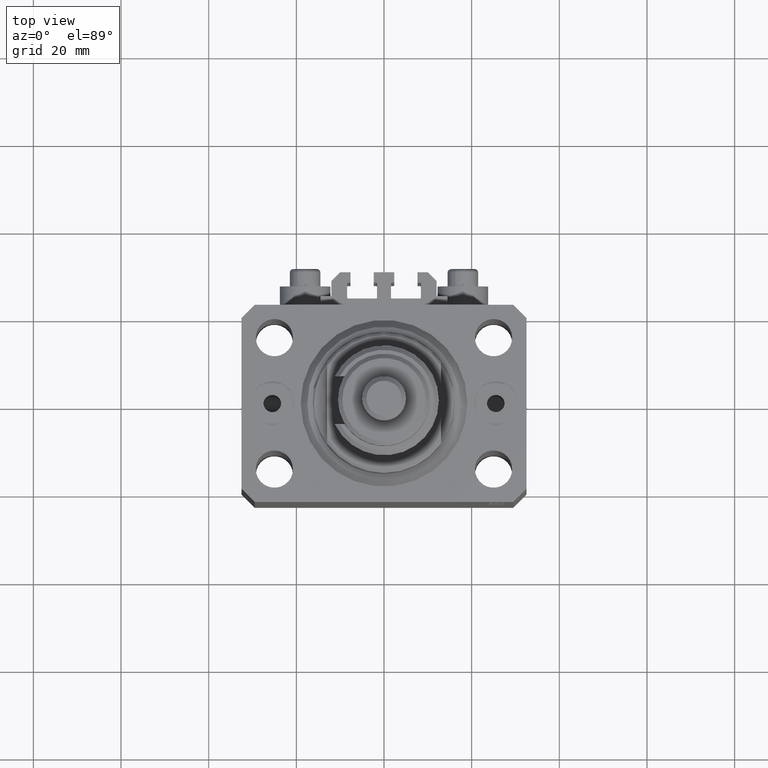
[diagram: clean part render]
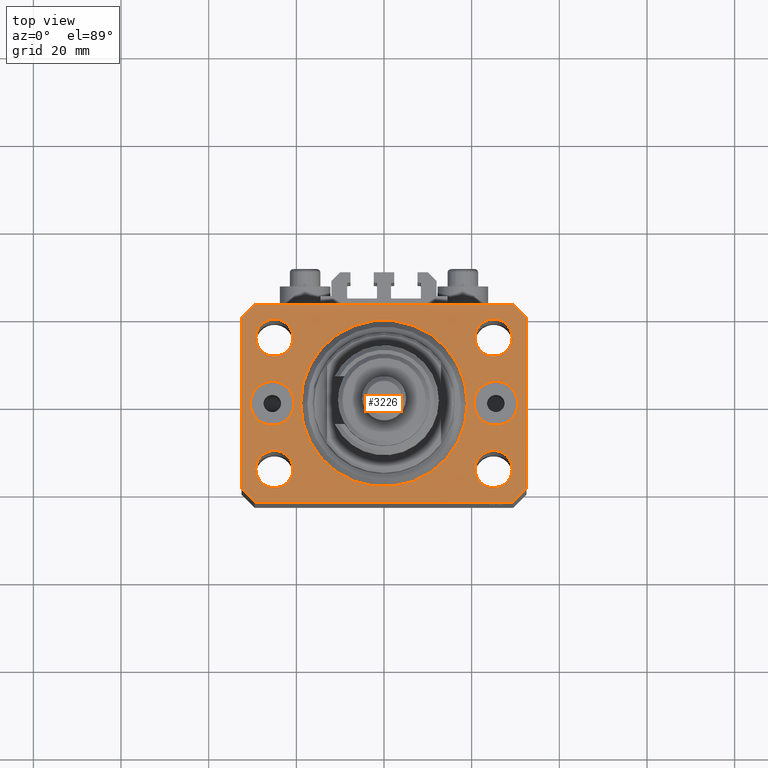
[diagram: same view with one face highlighted and labeled with its STEP entity id]
A machine part, top view. The second image highlights one B-rep face of the part: STEP entity #3226.
In plain terms, the highlighted planar face has unit normal (0, 0, 1).
Its self-contained STEP definition (entity closure, byte-faithful):
#81 = FACE_BOUND ( 'NONE', #24141, .T. ) ;
#518 = VECTOR ( 'NONE', #23508, 1000.000000000000000 ) ;
#1010 = VERTEX_POINT ( 'NONE', #22788 ) ;
#1161 = VECTOR ( 'NONE', #42852, 1000.000000000000000 ) ;
#1249 = EDGE_CURVE ( 'NONE', #11706, #33250, #41707, .T. ) ;
#1444 = DIRECTION ( 'NONE',  ( 0.000000000000000000, 0.000000000000000000, 1.000000000000000000 ) ) ;
#1555 = CARTESIAN_POINT ( 'NONE',  ( -25.50000000000000000, 0.000000000000000000, 0.000000000000000000 ) ) ;
#1666 = CARTESIAN_POINT ( 'NONE',  ( -20.74999999997862687, 14.99999999999999645, 0.000000000000000000 ) ) ;
#1779 = EDGE_LOOP ( 'NONE', ( #48025, #48828 ) ) ;
#2210 = CARTESIAN_POINT ( 'NONE',  ( 29.24999999997631051, -15.00000000000000355, 0.000000000000000000 ) ) ;
#2597 = DIRECTION ( 'NONE',  ( 0.000000000000000000, -0.000000000000000000, -1.000000000000000000 ) ) ;
#2757 = CARTESIAN_POINT ( 'NONE',  ( 29.24999999995729283, 14.99999999999999289, 0.000000000000000000 ) ) ;
#2859 = CARTESIAN_POINT ( 'NONE',  ( 32.49999999999651124, -19.49999999999949196, 0.000000000000000000 ) ) ;
#3114 = EDGE_CURVE ( 'NONE', #17656, #48320, #45877, .T. ) ;
#3121 = FACE_BOUND ( 'NONE', #49092, .T. ) ;
#3226 = ADVANCED_FACE ( 'NONE', ( #30473, #30228, #81, #11220, #3121, #7422, #38299, #34520 ), #45628, .T. ) ;
#3275 = CIRCLE ( 'NONE', #12998, 19.00000000000000000 ) ;
#3492 = VECTOR ( 'NONE', #22475, 1000.000000000000000 ) ;
#3586 = EDGE_CURVE ( 'NONE', #36620, #36896, #49602, .T. ) ;
#3898 = CARTESIAN_POINT ( 'NONE',  ( 30.50000000000333955, 0.000000000000000000, 0.000000000000000000 ) ) ;
#4098 = EDGE_CURVE ( 'NONE', #39252, #11706, #46631, .T. ) ;
#4143 = CARTESIAN_POINT ( 'NONE',  ( 32.49999999999702993, 19.49999999999945999, 0.000000000000000000 ) ) ;
#4576 = DIRECTION ( 'NONE',  ( 1.000000000000000000, 0.000000000000000000, 0.000000000000000000 ) ) ;
#5065 = CARTESIAN_POINT ( 'NONE',  ( 20.49999999999665690, 6.123233995740857512E-16, 0.000000000000000000 ) ) ;
#5295 = LINE ( 'NONE', #28100, #17809 ) ;
#5341 = VERTEX_POINT ( 'NONE', #47745 ) ;
#5984 = DIRECTION ( 'NONE',  ( 0.000000000000000000, 0.000000000000000000, 1.000000000000000000 ) ) ;
#6090 = DIRECTION ( 'NONE',  ( 1.000000000000000000, 0.000000000000000000, 0.000000000000000000 ) ) ;
#6146 = CARTESIAN_POINT ( 'NONE',  ( 25.00000000000000000, 14.99999999999999289, 0.000000000000000000 ) ) ;
#6256 = AXIS2_PLACEMENT_3D ( 'NONE', #40573, #9676, #40078 ) ;
#6265 = VERTEX_POINT ( 'NONE', #28258 ) ;
#6294 = VERTEX_POINT ( 'NONE', #1666 ) ;
#6660 = VERTEX_POINT ( 'NONE', #39954 ) ;
#6781 = AXIS2_PLACEMENT_3D ( 'NONE', #34769, #15517, #18316 ) ;
#7028 = CARTESIAN_POINT ( 'NONE',  ( 32.49999999999702993, 19.49999999999945999, 0.000000000000000000 ) ) ;
#7109 = CARTESIAN_POINT ( 'NONE',  ( 20.75000000004271072, 14.99999999999999289, 0.000000000000000000 ) ) ;
#7422 = FACE_BOUND ( 'NONE', #26419, .T. ) ;
#7693 = DIRECTION ( 'NONE',  ( 0.000000000000000000, 0.000000000000000000, 1.000000000000000000 ) ) ;
#7821 = LINE ( 'NONE', #23025, #25558 ) ;
#8082 = CIRCLE ( 'NONE', #25081, 4.249999999976314058 ) ;
#9160 = EDGE_CURVE ( 'NONE', #6660, #6294, #34453, .T. ) ;
#9676 = DIRECTION ( 'NONE',  ( 0.000000000000000000, 0.000000000000000000, 1.000000000000000000 ) ) ;
#9712 = EDGE_CURVE ( 'NONE', #17178, #39252, #7821, .T. ) ;
#9877 = EDGE_CURVE ( 'NONE', #20424, #17178, #41973, .T. ) ;
#11124 = AXIS2_PLACEMENT_3D ( 'NONE', #18271, #33727, #32737 ) ;
#11220 = FACE_BOUND ( 'NONE', #42751, .T. ) ;
#11605 = CARTESIAN_POINT ( 'NONE',  ( -29.49999999999650413, -22.49999999999949907, 0.000000000000000000 ) ) ;
#11706 = VERTEX_POINT ( 'NONE', #4143 ) ;
#11983 = DIRECTION ( 'NONE',  ( -1.000000000000000000, -3.528251137580330676E-16, 0.000000000000000000 ) ) ;
#12094 = DIRECTION ( 'NONE',  ( 1.000000000000000000, 0.000000000000000000, 0.000000000000000000 ) ) ;
#12631 = EDGE_CURVE ( 'NONE', #16740, #22906, #31349, .T. ) ;
#12843 = ORIENTED_EDGE ( 'NONE', *, *, #41483, .F. ) ;
#12986 = CARTESIAN_POINT ( 'NONE',  ( -32.49999999999650413, 19.49999999999949907, 0.000000000000000000 ) ) ;
#12998 = AXIS2_PLACEMENT_3D ( 'NONE', #28600, #16441, #36671 ) ;
#13077 = CARTESIAN_POINT ( 'NONE',  ( -24.99999999999999289, -15.00000000000000355, 0.000000000000000000 ) ) ;
#13165 = CARTESIAN_POINT ( 'NONE',  ( 19.00000000000000000, 0.000000000000000000, 0.000000000000000000 ) ) ;
#13241 = ORIENTED_EDGE ( 'NONE', *, *, #18842, .F. ) ;
#13374 = ORIENTED_EDGE ( 'NONE', *, *, #1249, .T. ) ;
#13676 = CARTESIAN_POINT ( 'NONE',  ( 24.99999999999999289, -15.00000000000000355, 0.000000000000000000 ) ) ;
#13825 = CARTESIAN_POINT ( 'NONE',  ( -25.00000000000000000, 14.99999999999999645, 0.000000000000000000 ) ) ;
#15136 = CARTESIAN_POINT ( 'NONE',  ( 0.000000000000000000, 0.000000000000000000, 0.000000000000000000 ) ) ;
#15175 = ORIENTED_EDGE ( 'NONE', *, *, #9877, .T. ) ;
#15277 = CARTESIAN_POINT ( 'NONE',  ( 20.75000000002367884, -15.00000000000000355, 0.000000000000000000 ) ) ;
#15517 = DIRECTION ( 'NONE',  ( 0.000000000000000000, 0.000000000000000000, 1.000000000000000000 ) ) ;
#16441 = DIRECTION ( 'NONE',  ( 0.000000000000000000, 0.000000000000000000, 1.000000000000000000 ) ) ;
#16735 = CARTESIAN_POINT ( 'NONE',  ( 29.49999999999650413, -22.49999999999949196, 0.000000000000000000 ) ) ;
#16740 = VERTEX_POINT ( 'NONE', #3898 ) ;
#17178 = VERTEX_POINT ( 'NONE', #16735 ) ;
#17656 = VERTEX_POINT ( 'NONE', #22907 ) ;
#17777 = LINE ( 'NONE', #12986, #25220 ) ;
#17809 = VECTOR ( 'NONE', #29093, 1000.000000000000114 ) ;
#18034 = DIRECTION ( 'NONE',  ( 1.000000000000000000, 0.000000000000000000, 0.000000000000000000 ) ) ;
#18165 = ORIENTED_EDGE ( 'NONE', *, *, #18629, .T. ) ;
#18271 = CARTESIAN_POINT ( 'NONE',  ( -24.99999999999999289, -15.00000000000000355, 0.000000000000000000 ) ) ;
#18316 = DIRECTION ( 'NONE',  ( 1.000000000000000000, 0.000000000000000000, -0.000000000000000000 ) ) ;
#18629 = EDGE_CURVE ( 'NONE', #22524, #20424, #5295, .T. ) ;
#18673 = ORIENTED_EDGE ( 'NONE', *, *, #4098, .T. ) ;
#18717 = AXIS2_PLACEMENT_3D ( 'NONE', #13825, #5984, #44688 ) ;
#18751 = AXIS2_PLACEMENT_3D ( 'NONE', #39578, #7693, #35540 ) ;
#18842 = EDGE_CURVE ( 'NONE', #6265, #1010, #46874, .T. ) ;
#19154 = CIRCLE ( 'NONE', #32936, 4.249999999957291053 ) ;
#19985 = VECTOR ( 'NONE', #11983, 1000.000000000000000 ) ;
#20029 = ORIENTED_EDGE ( 'NONE', *, *, #43552, .F. ) ;
#20267 = CIRCLE ( 'NONE', #18751, 5.000000000003342215 ) ;
#20424 = VERTEX_POINT ( 'NONE', #33467 ) ;
#20591 = DIRECTION ( 'NONE',  ( 0.000000000000000000, -1.000000000000000000, 0.000000000000000000 ) ) ;
#20781 = CIRCLE ( 'NONE', #23209, 19.00000000000000000 ) ;
#20999 = AXIS2_PLACEMENT_3D ( 'NONE', #6146, #47651, #40329 ) ;
#21145 = AXIS2_PLACEMENT_3D ( 'NONE', #34637, #27041, #12094 ) ;
#22129 = EDGE_CURVE ( 'NONE', #22906, #16740, #42957, .T. ) ;
#22292 = EDGE_CURVE ( 'NONE', #6294, #6660, #40542, .T. ) ;
#22475 = DIRECTION ( 'NONE',  ( -0.7071067811865344721, 0.7071067811865606734, 0.000000000000000000 ) ) ;
#22524 = VERTEX_POINT ( 'NONE', #39117 ) ;
#22788 = CARTESIAN_POINT ( 'NONE',  ( -29.25000000004036593, -15.00000000000000355, 0.000000000000000000 ) ) ;
#22865 = ORIENTED_EDGE ( 'NONE', *, *, #3586, .F. ) ;
#22906 = VERTEX_POINT ( 'NONE', #5065 ) ;
#22907 = CARTESIAN_POINT ( 'NONE',  ( -29.49999999999650413, 22.49999999999949907, 0.000000000000000000 ) ) ;
#23025 = CARTESIAN_POINT ( 'NONE',  ( 29.49999999999650413, -22.49999999999949196, 0.000000000000000000 ) ) ;
#23209 = AXIS2_PLACEMENT_3D ( 'NONE', #15136, #23760, #42468 ) ;
#23278 = DIRECTION ( 'NONE',  ( 0.7071067811865483499, 0.7071067811865466846, 0.000000000000000000 ) ) ;
#23508 = DIRECTION ( 'NONE',  ( 1.000000000000000000, 1.176083712526788232E-16, 0.000000000000000000 ) ) ;
#23760 = DIRECTION ( 'NONE',  ( 0.000000000000000000, 0.000000000000000000, 1.000000000000000000 ) ) ;
#23993 = DIRECTION ( 'NONE',  ( 1.000000000000000000, 0.000000000000000000, 0.000000000000000000 ) ) ;
#24046 = VERTEX_POINT ( 'NONE', #7109 ) ;
#24060 = CARTESIAN_POINT ( 'NONE',  ( -30.50000000000333955, 6.123233995740857512E-16, 0.000000000000000000 ) ) ;
#24141 = EDGE_LOOP ( 'NONE', ( #24318, #41154 ) ) ;
#24227 = CIRCLE ( 'NONE', #44380, 5.000000000003342215 ) ;
#24318 = ORIENTED_EDGE ( 'NONE', *, *, #35518, .F. ) ;
#24564 = CARTESIAN_POINT ( 'NONE',  ( 25.00000000000000000, 14.99999999999999289, 0.000000000000000000 ) ) ;
#25081 = AXIS2_PLACEMENT_3D ( 'NONE', #13676, #32944, #48331 ) ;
#25220 = VECTOR ( 'NONE', #20591, 1000.000000000000000 ) ;
#25558 = VECTOR ( 'NONE', #23278, 1000.000000000000000 ) ;
#26171 = CARTESIAN_POINT ( 'NONE',  ( -29.49999999999650413, 22.49999999999949907, 0.000000000000000000 ) ) ;
#26419 = EDGE_LOOP ( 'NONE', ( #47441, #38617 ) ) ;
#26696 = EDGE_LOOP ( 'NONE', ( #12843, #34664 ) ) ;
#27041 = DIRECTION ( 'NONE',  ( 0.000000000000000000, -0.000000000000000000, -1.000000000000000000 ) ) ;
#28038 = ORIENTED_EDGE ( 'NONE', *, *, #37146, .F. ) ;
#28094 = CIRCLE ( 'NONE', #11124, 4.250000000040370374 ) ;
#28100 = CARTESIAN_POINT ( 'NONE',  ( -32.49999999999650413, -19.49999999999949907, 0.000000000000000000 ) ) ;
#28258 = CARTESIAN_POINT ( 'NONE',  ( -20.74999999995962341, -15.00000000000000355, 0.000000000000000000 ) ) ;
#28600 = CARTESIAN_POINT ( 'NONE',  ( 0.000000000000000000, 0.000000000000000000, 0.000000000000000000 ) ) ;
#29093 = DIRECTION ( 'NONE',  ( 0.7071067811865474617, -0.7071067811865474617, 0.000000000000000000 ) ) ;
#29187 = EDGE_LOOP ( 'NONE', ( #49728, #45741 ) ) ;
#29512 = ORIENTED_EDGE ( 'NONE', *, *, #3114, .T. ) ;
#30228 = FACE_BOUND ( 'NONE', #1779, .T. ) ;
#30473 = FACE_OUTER_BOUND ( 'NONE', #35935, .T. ) ;
#31349 = CIRCLE ( 'NONE', #37791, 5.000000000003342215 ) ;
#31926 = DIRECTION ( 'NONE',  ( 1.000000000000000000, 0.000000000000000000, 0.000000000000000000 ) ) ;
#31934 = CARTESIAN_POINT ( 'NONE',  ( 24.99999999999999289, -15.00000000000000355, 0.000000000000000000 ) ) ;
#32075 = VERTEX_POINT ( 'NONE', #24060 ) ;
#32231 = CARTESIAN_POINT ( 'NONE',  ( 32.49999999999651124, -19.49999999999949196, 0.000000000000000000 ) ) ;
#32404 = CARTESIAN_POINT ( 'NONE',  ( 29.49999999999707967, 22.49999999999952038, 0.000000000000000000 ) ) ;
#32408 = DIRECTION ( 'NONE',  ( 0.000000000000000000, 0.000000000000000000, 1.000000000000000000 ) ) ;
#32614 = ORIENTED_EDGE ( 'NONE', *, *, #9712, .T. ) ;
#32641 = VECTOR ( 'NONE', #41847, 1000.000000000000114 ) ;
#32737 = DIRECTION ( 'NONE',  ( 1.000000000000000000, 0.000000000000000000, 0.000000000000000000 ) ) ;
#32936 = AXIS2_PLACEMENT_3D ( 'NONE', #24564, #32408, #31926 ) ;
#32944 = DIRECTION ( 'NONE',  ( 0.000000000000000000, 0.000000000000000000, 1.000000000000000000 ) ) ;
#33250 = VERTEX_POINT ( 'NONE', #32404 ) ;
#33467 = CARTESIAN_POINT ( 'NONE',  ( -29.49999999999650413, -22.49999999999949907, 0.000000000000000000 ) ) ;
#33727 = DIRECTION ( 'NONE',  ( 0.000000000000000000, 0.000000000000000000, 1.000000000000000000 ) ) ;
#34394 = VERTEX_POINT ( 'NONE', #2757 ) ;
#34453 = CIRCLE ( 'NONE', #6256, 4.250000000021375790 ) ;
#34520 = FACE_BOUND ( 'NONE', #29187, .T. ) ;
#34637 = CARTESIAN_POINT ( 'NONE',  ( 25.50000000000000000, 0.000000000000000000, 0.000000000000000000 ) ) ;
#34664 = ORIENTED_EDGE ( 'NONE', *, *, #48424, .F. ) ;
#34769 = CARTESIAN_POINT ( 'NONE',  ( 0.000000000000000000, 0.000000000000000000, 0.000000000000000000 ) ) ;
#35147 = EDGE_CURVE ( 'NONE', #33250, #17656, #49921, .T. ) ;
#35518 = EDGE_CURVE ( 'NONE', #34394, #24046, #19154, .T. ) ;
#35540 = DIRECTION ( 'NONE',  ( 1.000000000000000000, 0.000000000000000000, 0.000000000000000000 ) ) ;
#35687 = EDGE_CURVE ( 'NONE', #47317, #43504, #20781, .T. ) ;
#35935 = EDGE_LOOP ( 'NONE', ( #49786, #29512, #42700, #18165, #15175, #32614, #18673, #13374 ) ) ;
#36620 = VERTEX_POINT ( 'NONE', #2210 ) ;
#36671 = DIRECTION ( 'NONE',  ( 1.000000000000000000, 0.000000000000000000, 0.000000000000000000 ) ) ;
#36896 = VERTEX_POINT ( 'NONE', #15277 ) ;
#37146 = EDGE_CURVE ( 'NONE', #1010, #6265, #28094, .T. ) ;
#37791 = AXIS2_PLACEMENT_3D ( 'NONE', #44349, #2597, #18034 ) ;
#38299 = FACE_BOUND ( 'NONE', #26696, .T. ) ;
#38617 = ORIENTED_EDGE ( 'NONE', *, *, #44872, .F. ) ;
#39117 = CARTESIAN_POINT ( 'NONE',  ( -32.49999999999650413, -19.49999999999949907, 0.000000000000000000 ) ) ;
#39252 = VERTEX_POINT ( 'NONE', #2859 ) ;
#39578 = CARTESIAN_POINT ( 'NONE',  ( -25.50000000000000000, 0.000000000000000000, 0.000000000000000000 ) ) ;
#39783 = CARTESIAN_POINT ( 'NONE',  ( -19.00000000000000000, 2.326828918379970970E-15, 0.000000000000000000 ) ) ;
#39954 = CARTESIAN_POINT ( 'NONE',  ( -29.25000000002137668, 14.99999999999999645, 0.000000000000000000 ) ) ;
#40078 = DIRECTION ( 'NONE',  ( 1.000000000000000000, 0.000000000000000000, 0.000000000000000000 ) ) ;
#40329 = DIRECTION ( 'NONE',  ( 1.000000000000000000, 0.000000000000000000, 0.000000000000000000 ) ) ;
#40542 = CIRCLE ( 'NONE', #18717, 4.250000000021375790 ) ;
#40573 = CARTESIAN_POINT ( 'NONE',  ( -25.00000000000000000, 14.99999999999999645, 0.000000000000000000 ) ) ;
#40767 = DIRECTION ( 'NONE',  ( 0.000000000000000000, 0.000000000000000000, 1.000000000000000000 ) ) ;
#41154 = ORIENTED_EDGE ( 'NONE', *, *, #43084, .F. ) ;
#41224 = AXIS2_PLACEMENT_3D ( 'NONE', #13077, #1444, #23993 ) ;
#41483 = EDGE_CURVE ( 'NONE', #5341, #32075, #24227, .T. ) ;
#41707 = LINE ( 'NONE', #7028, #3492 ) ;
#41847 = DIRECTION ( 'NONE',  ( -0.7071067811865474617, -0.7071067811865474617, 0.000000000000000000 ) ) ;
#41973 = LINE ( 'NONE', #11605, #518 ) ;
#42468 = DIRECTION ( 'NONE',  ( 1.000000000000000000, 0.000000000000000000, 0.000000000000000000 ) ) ;
#42700 = ORIENTED_EDGE ( 'NONE', *, *, #48480, .T. ) ;
#42751 = EDGE_LOOP ( 'NONE', ( #22865, #20029 ) ) ;
#42806 = CIRCLE ( 'NONE', #20999, 4.249999999957291053 ) ;
#42852 = DIRECTION ( 'NONE',  ( 1.334402673828349134E-14, 1.000000000000000000, 0.000000000000000000 ) ) ;
#42957 = CIRCLE ( 'NONE', #21145, 5.000000000003342215 ) ;
#43039 = DIRECTION ( 'NONE',  ( 0.000000000000000000, 0.000000000000000000, 1.000000000000000000 ) ) ;
#43084 = EDGE_CURVE ( 'NONE', #24046, #34394, #42806, .T. ) ;
#43504 = VERTEX_POINT ( 'NONE', #39783 ) ;
#43552 = EDGE_CURVE ( 'NONE', #36896, #36620, #8082, .T. ) ;
#44349 = CARTESIAN_POINT ( 'NONE',  ( 25.50000000000000000, 0.000000000000000000, 0.000000000000000000 ) ) ;
#44380 = AXIS2_PLACEMENT_3D ( 'NONE', #1555, #40767, #6090 ) ;
#44688 = DIRECTION ( 'NONE',  ( 1.000000000000000000, 0.000000000000000000, 0.000000000000000000 ) ) ;
#44872 = EDGE_CURVE ( 'NONE', #43504, #47317, #3275, .T. ) ;
#45398 = CARTESIAN_POINT ( 'NONE',  ( -32.49999999999650413, 19.49999999999949907, 0.000000000000000000 ) ) ;
#45561 = AXIS2_PLACEMENT_3D ( 'NONE', #31934, #43039, #4576 ) ;
#45628 = PLANE ( 'NONE',  #6781 ) ;
#45741 = ORIENTED_EDGE ( 'NONE', *, *, #22129, .T. ) ;
#45877 = LINE ( 'NONE', #26171, #32641 ) ;
#46630 = CARTESIAN_POINT ( 'NONE',  ( 29.49999999999707967, 22.49999999999952038, 0.000000000000000000 ) ) ;
#46631 = LINE ( 'NONE', #32231, #1161 ) ;
#46874 = CIRCLE ( 'NONE', #41224, 4.250000000040370374 ) ;
#47317 = VERTEX_POINT ( 'NONE', #13165 ) ;
#47441 = ORIENTED_EDGE ( 'NONE', *, *, #35687, .F. ) ;
#47651 = DIRECTION ( 'NONE',  ( 0.000000000000000000, 0.000000000000000000, 1.000000000000000000 ) ) ;
#47745 = CARTESIAN_POINT ( 'NONE',  ( -20.49999999999665690, 0.000000000000000000, 0.000000000000000000 ) ) ;
#48025 = ORIENTED_EDGE ( 'NONE', *, *, #22292, .F. ) ;
#48320 = VERTEX_POINT ( 'NONE', #45398 ) ;
#48331 = DIRECTION ( 'NONE',  ( 1.000000000000000000, 0.000000000000000000, 0.000000000000000000 ) ) ;
#48424 = EDGE_CURVE ( 'NONE', #32075, #5341, #20267, .T. ) ;
#48480 = EDGE_CURVE ( 'NONE', #48320, #22524, #17777, .T. ) ;
#48828 = ORIENTED_EDGE ( 'NONE', *, *, #9160, .F. ) ;
#49092 = EDGE_LOOP ( 'NONE', ( #13241, #28038 ) ) ;
#49602 = CIRCLE ( 'NONE', #45561, 4.249999999976314058 ) ;
#49728 = ORIENTED_EDGE ( 'NONE', *, *, #12631, .T. ) ;
#49786 = ORIENTED_EDGE ( 'NONE', *, *, #35147, .T. ) ;
#49921 = LINE ( 'NONE', #46630, #19985 ) ;